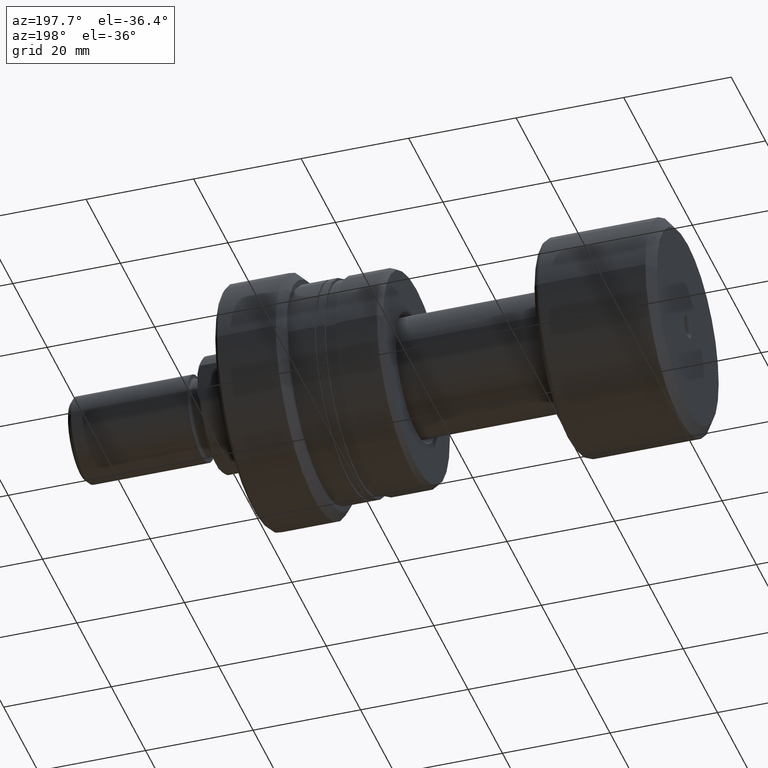
[diagram: clean part render]
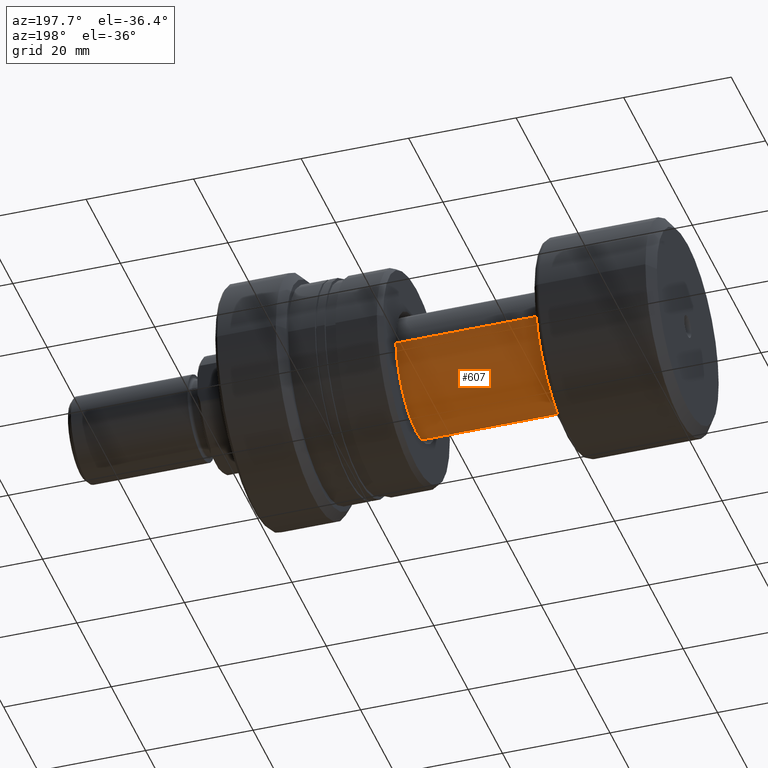
[diagram: same view with one face highlighted and labeled with its STEP entity id]
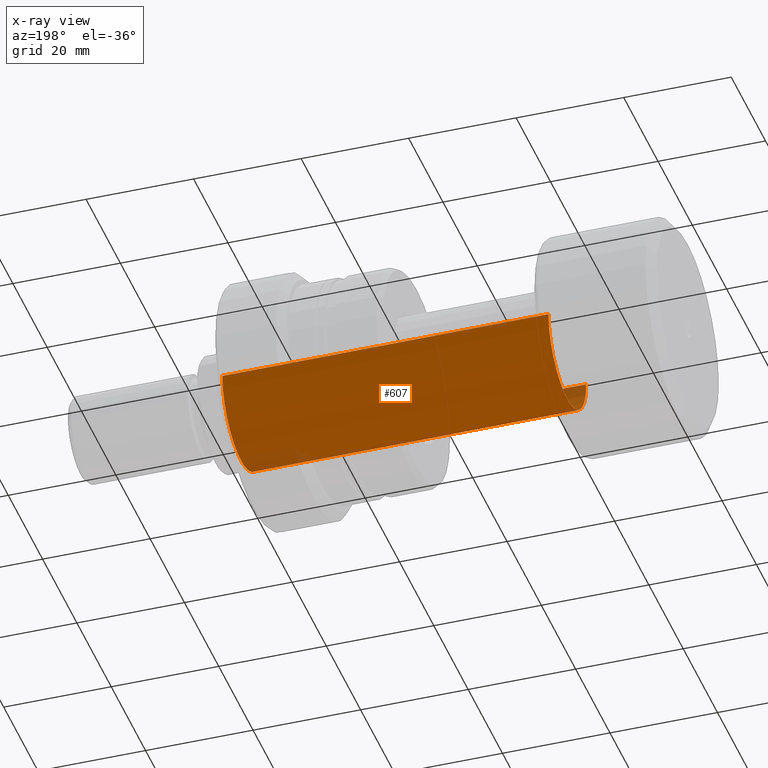
[diagram: x-ray of the same camera — body ghosted, the highlighted face saturated]
A machine part, auxiliary view. The second image highlights one B-rep face of the part: STEP entity #607.
The next image is the same camera in x-ray: the body ghosted, the highlighted face saturated — about 5% of this face is hidden behind the body in this view.
In plain terms, the highlighted cylindrical surface (partial cylindrical patch) has radius 11 mm, axis along (-1, -0, -0).
Its self-contained STEP definition (entity closure, byte-faithful):
#9 = AXIS2_PLACEMENT_3D ( 'NONE', #2872, #1299, #1143 ) ;
#143 = ORIENTED_EDGE ( 'NONE', *, *, #2605, .T. ) ;
#179 = CARTESIAN_POINT ( 'NONE',  ( 22.39999999999999858, -11.00000000000000000, 0.000000000000000000 ) ) ;
#198 = CARTESIAN_POINT ( 'NONE',  ( -1.176496554275982688E-16, 11.00000000000009415, 1.347111479062100238E-15 ) ) ;
#249 = DIRECTION ( 'NONE',  ( -1.000000000000000000, -1.069542322069065801E-17, -0.000000000000000000 ) ) ;
#287 = CARTESIAN_POINT ( 'NONE',  ( 22.39999999999999858, 2.395774801434707739E-16, 0.000000000000000000 ) ) ;
#291 = CARTESIAN_POINT ( 'NONE',  ( 83.06675751232377536, 11.00000000000019185, 1.347111479062111873E-15 ) ) ;
#424 = CARTESIAN_POINT ( 'NONE',  ( 1.176496554275982688E-16, -11.00000000000009415, 0.000000000000000000 ) ) ;
#519 = AXIS2_PLACEMENT_3D ( 'NONE', #660, #249, #1765 ) ;
#607 = ADVANCED_FACE ( 'NONE', ( #1094 ), #841, .T. ) ;
#660 = CARTESIAN_POINT ( 'NONE',  ( 83.06675751232377536, 8.884341271647877269E-16, 0.000000000000000000 ) ) ;
#756 = DIRECTION ( 'NONE',  ( 0.000000000000000000, -1.000000000000000000, 0.000000000000000000 ) ) ;
#841 = CYLINDRICAL_SURFACE ( 'NONE', #9, 11.00000000000009415 ) ;
#872 = LINE ( 'NONE', #424, #1842 ) ;
#877 = VERTEX_POINT ( 'NONE', #2841 ) ;
#902 = VECTOR ( 'NONE', #1316, 1000.000000000000000 ) ;
#1094 = FACE_OUTER_BOUND ( 'NONE', #2286, .T. ) ;
#1143 = DIRECTION ( 'NONE',  ( 1.069542322069065955E-17, -1.000000000000000000, 0.000000000000000000 ) ) ;
#1188 = DIRECTION ( 'NONE',  ( -1.000000000000000000, -1.069542322069065801E-17, -0.000000000000000000 ) ) ;
#1299 = DIRECTION ( 'NONE',  ( -1.000000000000000000, -1.069542322069065801E-17, -0.000000000000000000 ) ) ;
#1316 = DIRECTION ( 'NONE',  ( -1.000000000000000000, -1.069542322069065801E-17, -0.000000000000000000 ) ) ;
#1374 = DIRECTION ( 'NONE',  ( -1.000000000000000000, -1.069542322069065801E-17, -0.000000000000000000 ) ) ;
#1379 = CIRCLE ( 'NONE', #2761, 11.00000000000000000 ) ;
#1426 = CIRCLE ( 'NONE', #519, 11.00000000000019007 ) ;
#1674 = ORIENTED_EDGE ( 'NONE', *, *, #2768, .F. ) ;
#1693 = VERTEX_POINT ( 'NONE', #179 ) ;
#1757 = ORIENTED_EDGE ( 'NONE', *, *, #2684, .F. ) ;
#1765 = DIRECTION ( 'NONE',  ( 0.000000000000000000, -1.000000000000000000, 0.000000000000000000 ) ) ;
#1823 = VERTEX_POINT ( 'NONE', #1906 ) ;
#1842 = VECTOR ( 'NONE', #1374, 1000.000000000000000 ) ;
#1906 = CARTESIAN_POINT ( 'NONE',  ( 22.39999999999999858, 11.00000000000000000, 1.347111479062094124E-15 ) ) ;
#2195 = ORIENTED_EDGE ( 'NONE', *, *, #2683, .T. ) ;
#2286 = EDGE_LOOP ( 'NONE', ( #1757, #143, #2195, #1674 ) ) ;
#2303 = VERTEX_POINT ( 'NONE', #291 ) ;
#2605 = EDGE_CURVE ( 'NONE', #2303, #877, #1426, .T. ) ;
#2681 = LINE ( 'NONE', #198, #902 ) ;
#2683 = EDGE_CURVE ( 'NONE', #877, #1693, #872, .T. ) ;
#2684 = EDGE_CURVE ( 'NONE', #2303, #1823, #2681, .T. ) ;
#2761 = AXIS2_PLACEMENT_3D ( 'NONE', #287, #1188, #756 ) ;
#2768 = EDGE_CURVE ( 'NONE', #1823, #1693, #1379, .T. ) ;
#2841 = CARTESIAN_POINT ( 'NONE',  ( 83.06675751232377536, -11.00000000000018829, 0.000000000000000000 ) ) ;
#2872 = CARTESIAN_POINT ( 'NONE',  ( 0.000000000000000000, 0.000000000000000000, 0.000000000000000000 ) ) ;